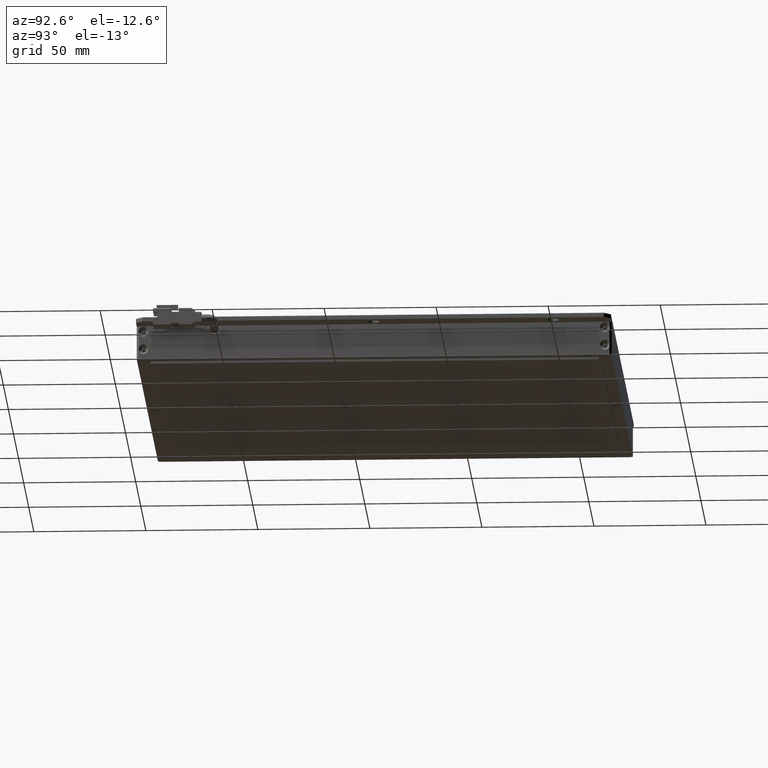
[diagram: clean part render]
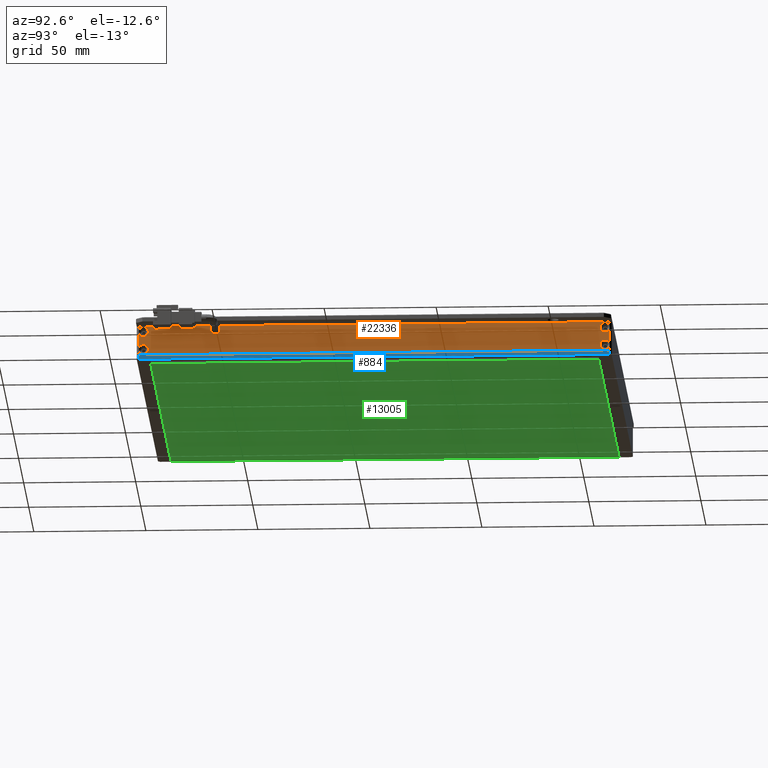
[diagram: same view with three faces highlighted in distinct colors, each labeled with its STEP entity id]
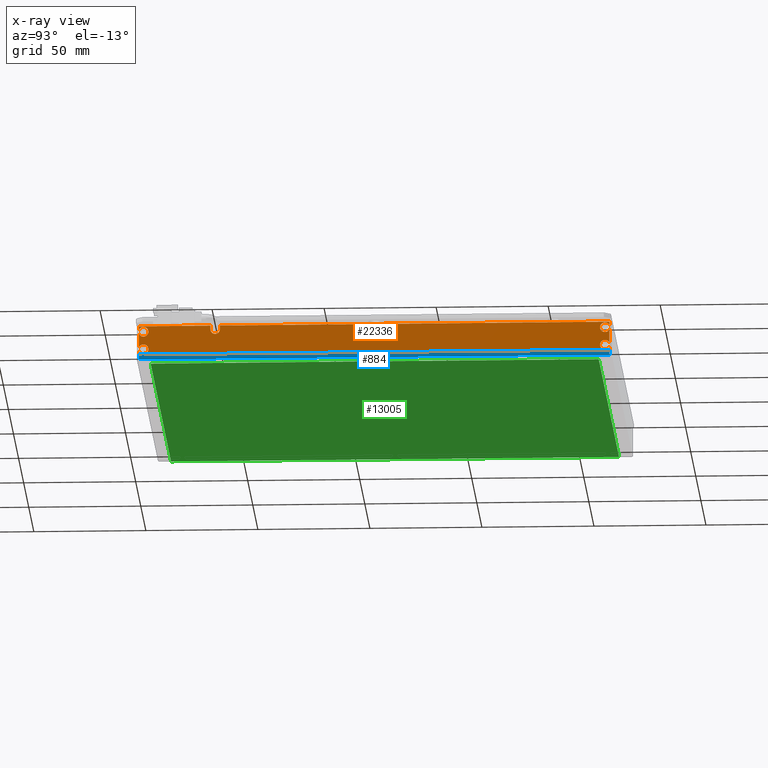
[diagram: x-ray of the same camera — body ghosted, the three highlighted faces saturated]
A machine part, auxiliary view with three faces highlighted in distinct colors.
The next image is the same camera in x-ray (body ghosted, the three faces saturated) — at least one of them is partly hidden behind the body in this view.
Their STEP definitions:

[orange] entity #22336 — the highlighted planar face has unit normal (1, 0, 0).
#96 = EDGE_CURVE ( 'NONE', #4833, #19642, #21328, .T. ) ;
#263 = EDGE_CURVE ( 'NONE', #2877, #8460, #15183, .T. ) ;
#286 = AXIS2_PLACEMENT_3D ( 'NONE', #12539, #9136, #16116 ) ;
#300 = CARTESIAN_POINT ( 'NONE',  ( 123.6657505824738800, -138.3787539827808400, -11.41651513904448500 ) ) ;
#325 = CARTESIAN_POINT ( 'NONE',  ( 123.6657505824761200, 71.62124601721906500, -13.00000000002363800 ) ) ;
#580 = LINE ( 'NONE', #6464, #9919 ) ;
#887 = AXIS2_PLACEMENT_3D ( 'NONE', #18245, #4418, #2501 ) ;
#1008 = ORIENTED_EDGE ( 'NONE', *, *, #15282, .T. ) ;
#1059 = CARTESIAN_POINT ( 'NONE',  ( 123.6657505824781400, 71.62124601721907900, -1.583484861012602900 ) ) ;
#1539 = LINE ( 'NONE', #19079, #15752 ) ;
#1789 = DIRECTION ( 'NONE',  ( -1.000000000000000000, -1.309225264888156400E-016, -0.0000000000000000000 ) ) ;
#1829 = CIRCLE ( 'NONE', #16588, 2.200000000007598500 ) ;
#1958 = VERTEX_POINT ( 'NONE', #2323 ) ;
#2066 = CIRCLE ( 'NONE', #11571, 2.200000000024793200 ) ;
#2275 = CARTESIAN_POINT ( 'NONE',  ( 123.6657505824716000, -136.3787539827808100, -10.50000000002363100 ) ) ;
#2288 = EDGE_CURVE ( 'NONE', #21490, #4630, #20693, .T. ) ;
#2323 = CARTESIAN_POINT ( 'NONE',  ( 123.6657505824738800, -106.4787539827785000, -1.700000000023617500 ) ) ;
#2501 = DIRECTION ( 'NONE',  ( 0.0000000000000000000, -1.000000000000000000, 0.0000000000000000000 ) ) ;
#2692 = DIRECTION ( 'NONE',  ( -3.602839574495699400E-035, 2.751886685293596300E-019, 1.000000000000000000 ) ) ;
#2761 = CIRCLE ( 'NONE', #286, 2.200000000007598500 ) ;
#2877 = VERTEX_POINT ( 'NONE', #4849 ) ;
#2901 = CIRCLE ( 'NONE', #14141, 2.200000000024793200 ) ;
#3143 = DIRECTION ( 'NONE',  ( -1.000000000000000000, -1.309225264888156400E-016, -0.0000000000000000000 ) ) ;
#3281 = DIRECTION ( 'NONE',  ( 3.602839574495699400E-035, -2.751886685293596300E-019, -1.000000000000000000 ) ) ;
#3447 = EDGE_CURVE ( 'NONE', #14478, #4438, #2066, .T. ) ;
#3487 = ORIENTED_EDGE ( 'NONE', *, *, #21854, .T. ) ;
#3748 = CARTESIAN_POINT ( 'NONE',  ( 123.6657505824715700, 67.42124601721168600, -10.50000000002363100 ) ) ;
#3844 = DIRECTION ( 'NONE',  ( -3.602839574495699400E-035, 2.751886685293596300E-019, 1.000000000000000000 ) ) ;
#3977 = VECTOR ( 'NONE', #3281, 1000.000000000000000 ) ;
#4036 = LINE ( 'NONE', #14157, #16321 ) ;
#4039 = LINE ( 'NONE', #16625, #21401 ) ;
#4067 = VERTEX_POINT ( 'NONE', #16275 ) ;
#4418 = DIRECTION ( 'NONE',  ( -1.000000000000000000, -1.309225264888156400E-016, -0.0000000000000000000 ) ) ;
#4421 = EDGE_LOOP ( 'NONE', ( #3487, #11841, #12231, #8798, #7122, #17385, #8335, #20676, #14505, #19179, #19773, #14456, #1008, #18214, #16534, #6692, #7595, #11213, #14261, #18078 ) ) ;
#4424 = CARTESIAN_POINT ( 'NONE',  ( 123.6657505824761400, -106.4787539827807900, -6.500000000023630900 ) ) ;
#4438 = VERTEX_POINT ( 'NONE', #9511 ) ;
#4630 = VERTEX_POINT ( 'NONE', #13863 ) ;
#4670 = DIRECTION ( 'NONE',  ( 0.0000000000000000000, -1.000000000000000000, 4.731064025337974900E-015 ) ) ;
#4833 = VERTEX_POINT ( 'NONE', #3748 ) ;
#4849 = CARTESIAN_POINT ( 'NONE',  ( 123.6657505824761200, 71.62124601721909300, -2.361912748716221700E-011 ) ) ;
#4870 = DIRECTION ( 'NONE',  ( 3.602839574495699400E-035, -2.751886685293596300E-019, -1.000000000000000000 ) ) ;
#5149 = AXIS2_PLACEMENT_3D ( 'NONE', #13127, #18233, #11451 ) ;
#5413 = DIRECTION ( 'NONE',  ( 0.0000000000000000000, -1.000000000000000000, 0.0000000000000000000 ) ) ;
#5511 = VERTEX_POINT ( 'NONE', #12987 ) ;
#6127 = EDGE_CURVE ( 'NONE', #19642, #19674, #580, .T. ) ;
#6289 = DIRECTION ( 'NONE',  ( -3.602839574495699400E-035, 2.751886685293596300E-019, 1.000000000000000000 ) ) ;
#6460 = DIRECTION ( 'NONE',  ( -1.309225264888156400E-016, 1.000000000000000000, -2.751886685293596300E-019 ) ) ;
#6463 = FACE_OUTER_BOUND ( 'NONE', #4421, .T. ) ;
#6464 = CARTESIAN_POINT ( 'NONE',  ( 123.6657505824761200, 71.62124601721910700, -6.500000000023630900 ) ) ;
#6561 = CARTESIAN_POINT ( 'NONE',  ( 123.6657505824761600, 71.62124601721906500, -6.500000000023630900 ) ) ;
#6692 = ORIENTED_EDGE ( 'NONE', *, *, #96, .T. ) ;
#6744 = VECTOR ( 'NONE', #21704, 1000.000000000000000 ) ;
#7001 = DIRECTION ( 'NONE',  ( 0.0000000000000000000, -1.000000000000000000, 0.0000000000000000000 ) ) ;
#7122 = ORIENTED_EDGE ( 'NONE', *, *, #2288, .T. ) ;
#7137 = CARTESIAN_POINT ( 'NONE',  ( 123.6657505824761400, -102.2787539827808300, -2.362866846628008900E-011 ) ) ;
#7193 = AXIS2_PLACEMENT_3D ( 'NONE', #16918, #15059, #4670 ) ;
#7482 = DIRECTION ( 'NONE',  ( -1.000000000000000000, -1.309225264888156400E-016, -0.0000000000000000000 ) ) ;
#7544 = EDGE_CURVE ( 'NONE', #4630, #16257, #17628, .T. ) ;
#7566 = CARTESIAN_POINT ( 'NONE',  ( 123.6657505824716000, -134.1787539827560400, -2.500000000023631300 ) ) ;
#7583 = VECTOR ( 'NONE', #15472, 1000.000000000000000 ) ;
#7595 = ORIENTED_EDGE ( 'NONE', *, *, #6127, .T. ) ;
#7645 = EDGE_CURVE ( 'NONE', #21874, #4833, #1829, .T. ) ;
#7659 = VERTEX_POINT ( 'NONE', #7137 ) ;
#7739 = CARTESIAN_POINT ( 'NONE',  ( 123.6657505824761400, -33.37875398278077200, -2.364254625408790400E-011 ) ) ;
#7837 = CARTESIAN_POINT ( 'NONE',  ( 123.6657505824715700, 67.42124601721168600, -2.500000000023630900 ) ) ;
#7955 = CARTESIAN_POINT ( 'NONE',  ( 123.6657505824761500, -138.3787539827808400, -6.500000000023630900 ) ) ;
#8162 = CARTESIAN_POINT ( 'NONE',  ( 123.6657505824738800, -138.3787539827808400, -9.583484861002777000 ) ) ;
#8198 = VERTEX_POINT ( 'NONE', #300 ) ;
#8335 = ORIENTED_EDGE ( 'NONE', *, *, #19461, .T. ) ;
#8347 = DIRECTION ( 'NONE',  ( 3.602839574495699400E-035, -2.751886685293596300E-019, -1.000000000000000000 ) ) ;
#8460 = VERTEX_POINT ( 'NONE', #1059 ) ;
#8492 = EDGE_CURVE ( 'NONE', #7659, #4067, #4039, .T. ) ;
#8515 = VECTOR ( 'NONE', #12391, 1000.000000000000000 ) ;
#8720 = DIRECTION ( 'NONE',  ( 1.309225264888156400E-016, -1.000000000000000000, 2.751886685293596300E-019 ) ) ;
#8798 = ORIENTED_EDGE ( 'NONE', *, *, #9067, .T. ) ;
#9067 = EDGE_CURVE ( 'NONE', #1958, #21490, #15481, .T. ) ;
#9136 = DIRECTION ( 'NONE',  ( -1.000000000000000000, -1.309225264888156400E-016, -0.0000000000000000000 ) ) ;
#9511 = CARTESIAN_POINT ( 'NONE',  ( 123.6657505824716000, -134.1787539827560400, -10.50000000002363100 ) ) ;
#9610 = CIRCLE ( 'NONE', #19066, 2.200000000007598500 ) ;
#9919 = VECTOR ( 'NONE', #2692, 1000.000000000000000 ) ;
#10319 = DIRECTION ( 'NONE',  ( 0.0000000000000000000, -1.000000000000000000, 3.548298019003481000E-015 ) ) ;
#10532 = DIRECTION ( 'NONE',  ( 0.0000000000000000000, -1.000000000000000000, 0.0000000000000000000 ) ) ;
#11213 = ORIENTED_EDGE ( 'NONE', *, *, #17533, .T. ) ;
#11451 = DIRECTION ( 'NONE',  ( 1.309225264888156400E-016, -1.000000000000000000, 2.751886685293596300E-019 ) ) ;
#11509 = VECTOR ( 'NONE', #6289, 1000.000000000000000 ) ;
#11571 = AXIS2_PLACEMENT_3D ( 'NONE', #2275, #7482, #12676 ) ;
#11841 = ORIENTED_EDGE ( 'NONE', *, *, #8492, .T. ) ;
#12231 = ORIENTED_EDGE ( 'NONE', *, *, #12602, .T. ) ;
#12391 = DIRECTION ( 'NONE',  ( 1.309225264888156400E-016, -1.000000000000000000, 2.751886685293596300E-019 ) ) ;
#12539 = CARTESIAN_POINT ( 'NONE',  ( 123.6657505824715700, 69.62124601721927800, -2.500000000023630900 ) ) ;
#12602 = EDGE_CURVE ( 'NONE', #4067, #1958, #20273, .T. ) ;
#12676 = DIRECTION ( 'NONE',  ( 0.0000000000000000000, -1.000000000000000000, 3.942553354448312000E-015 ) ) ;
#12699 = CARTESIAN_POINT ( 'NONE',  ( 123.6657505824761500, -138.3787539827808400, -13.00000000002364900 ) ) ;
#12816 = DIRECTION ( 'NONE',  ( -1.000000000000000000, -1.309225264888156400E-016, -0.0000000000000000000 ) ) ;
#12902 = DIRECTION ( 'NONE',  ( 0.0000000000000000000, -1.000000000000000000, 3.548298019003481000E-015 ) ) ;
#12987 = CARTESIAN_POINT ( 'NONE',  ( 123.6657505824738800, -138.3787539827808400, -3.416515139044482600 ) ) ;
#13117 = VERTEX_POINT ( 'NONE', #325 ) ;
#13127 = CARTESIAN_POINT ( 'NONE',  ( 123.6657505824761400, -33.37875398278077200, -6.500000000023630900 ) ) ;
#13863 = CARTESIAN_POINT ( 'NONE',  ( 123.6657505824761500, -138.3787539827808400, -2.364254625408790400E-011 ) ) ;
#13891 = EDGE_CURVE ( 'NONE', #17487, #8198, #16902, .T. ) ;
#13982 = DIRECTION ( 'NONE',  ( -1.000000000000000000, -1.309225264888156400E-016, -0.0000000000000000000 ) ) ;
#14114 = VECTOR ( 'NONE', #4870, 1000.000000000000000 ) ;
#14141 = AXIS2_PLACEMENT_3D ( 'NONE', #18873, #3143, #10319 ) ;
#14157 = CARTESIAN_POINT ( 'NONE',  ( 123.6657505824761200, 71.62124601721905000, -6.500000000023630900 ) ) ;
#14261 = ORIENTED_EDGE ( 'NONE', *, *, #16130, .T. ) ;
#14280 = CARTESIAN_POINT ( 'NONE',  ( 123.6657505824716000, -104.3787539827808100, -1.700000000023616600 ) ) ;
#14285 = CARTESIAN_POINT ( 'NONE',  ( 123.6657505824738500, 71.62124601721910700, -3.416515139024304500 ) ) ;
#14456 = ORIENTED_EDGE ( 'NONE', *, *, #13891, .F. ) ;
#14478 = VERTEX_POINT ( 'NONE', #8162 ) ;
#14505 = ORIENTED_EDGE ( 'NONE', *, *, #21939, .T. ) ;
#14605 = LINE ( 'NONE', #16938, #17805 ) ;
#14640 = AXIS2_PLACEMENT_3D ( 'NONE', #16455, #12816, #12902 ) ;
#14649 = CARTESIAN_POINT ( 'NONE',  ( 123.6657505824738800, -138.3787539827808400, -1.583484861002775600 ) ) ;
#14949 = PLANE ( 'NONE',  #5149 ) ;
#15059 = DIRECTION ( 'NONE',  ( -1.000000000000000000, -1.309225264888156400E-016, -0.0000000000000000000 ) ) ;
#15183 = LINE ( 'NONE', #6561, #14114 ) ;
#15282 = EDGE_CURVE ( 'NONE', #17487, #13117, #14605, .T. ) ;
#15472 = DIRECTION ( 'NONE',  ( 3.602839574495699400E-035, -2.751886685293596300E-019, -1.000000000000000000 ) ) ;
#15481 = LINE ( 'NONE', #4424, #6744 ) ;
#15752 = VECTOR ( 'NONE', #8720, 1000.000000000000000 ) ;
#15795 = DIRECTION ( 'NONE',  ( -1.000000000000000000, -1.309225264888156400E-016, -0.0000000000000000000 ) ) ;
#16116 = DIRECTION ( 'NONE',  ( 0.0000000000000000000, -1.000000000000000000, 0.0000000000000000000 ) ) ;
#16130 = EDGE_CURVE ( 'NONE', #20698, #8460, #9610, .T. ) ;
#16257 = VERTEX_POINT ( 'NONE', #14649 ) ;
#16262 = AXIS2_PLACEMENT_3D ( 'NONE', #14280, #15795, #10532 ) ;
#16275 = CARTESIAN_POINT ( 'NONE',  ( 123.6657505824738600, -102.2787539827831000, -1.700000000023617500 ) ) ;
#16299 = EDGE_CURVE ( 'NONE', #17111, #5511, #19878, .T. ) ;
#16321 = VECTOR ( 'NONE', #3844, 1000.000000000000000 ) ;
#16400 = CIRCLE ( 'NONE', #7193, 2.200000000024793200 ) ;
#16455 = CARTESIAN_POINT ( 'NONE',  ( 123.6657505824716000, -136.3787539827808100, -2.500000000023630900 ) ) ;
#16534 = ORIENTED_EDGE ( 'NONE', *, *, #7645, .T. ) ;
#16588 = AXIS2_PLACEMENT_3D ( 'NONE', #17623, #1789, #5413 ) ;
#16625 = CARTESIAN_POINT ( 'NONE',  ( 123.6657505824761400, -102.2787539827808300, -6.500000000023630900 ) ) ;
#16902 = LINE ( 'NONE', #7955, #11509 ) ;
#16918 = CARTESIAN_POINT ( 'NONE',  ( 123.6657505824716000, -136.3787539827808100, -10.50000000002363100 ) ) ;
#16938 = CARTESIAN_POINT ( 'NONE',  ( 123.6657505824761400, -33.37875398278077200, -13.00000000002364500 ) ) ;
#17111 = VERTEX_POINT ( 'NONE', #7566 ) ;
#17124 = CARTESIAN_POINT ( 'NONE',  ( 123.6657505824761500, -138.3787539827808400, -6.500000000023630900 ) ) ;
#17385 = ORIENTED_EDGE ( 'NONE', *, *, #7544, .T. ) ;
#17487 = VERTEX_POINT ( 'NONE', #12699 ) ;
#17500 = CARTESIAN_POINT ( 'NONE',  ( 123.6657505824715700, 69.62124601721927800, -2.500000000023630900 ) ) ;
#17533 = EDGE_CURVE ( 'NONE', #19674, #20698, #2761, .T. ) ;
#17623 = CARTESIAN_POINT ( 'NONE',  ( 123.6657505824715700, 69.62124601721927800, -10.50000000002363100 ) ) ;
#17628 = LINE ( 'NONE', #20711, #7583 ) ;
#17758 = EDGE_CURVE ( 'NONE', #4438, #8198, #16400, .T. ) ;
#17805 = VECTOR ( 'NONE', #6460, 1000.000000000000000 ) ;
#18078 = ORIENTED_EDGE ( 'NONE', *, *, #263, .F. ) ;
#18214 = ORIENTED_EDGE ( 'NONE', *, *, #18948, .T. ) ;
#18233 = DIRECTION ( 'NONE',  ( 1.000000000000000000, 1.309225264888156400E-016, 0.0000000000000000000 ) ) ;
#18245 = CARTESIAN_POINT ( 'NONE',  ( 123.6657505824715700, 69.62124601721927800, -10.50000000002363100 ) ) ;
#18873 = CARTESIAN_POINT ( 'NONE',  ( 123.6657505824716000, -136.3787539827808100, -2.500000000023630900 ) ) ;
#18928 = CARTESIAN_POINT ( 'NONE',  ( 123.6657505824738500, 71.62124601721907900, -11.41651513902436800 ) ) ;
#18948 = EDGE_CURVE ( 'NONE', #13117, #21874, #4036, .T. ) ;
#19066 = AXIS2_PLACEMENT_3D ( 'NONE', #17500, #13982, #7001 ) ;
#19079 = CARTESIAN_POINT ( 'NONE',  ( 123.6657505824761400, -33.37875398278077200, -2.362086221063819400E-011 ) ) ;
#19179 = ORIENTED_EDGE ( 'NONE', *, *, #3447, .T. ) ;
#19461 = EDGE_CURVE ( 'NONE', #16257, #17111, #2901, .T. ) ;
#19598 = CARTESIAN_POINT ( 'NONE',  ( 123.6657505824781400, 71.62124601721910700, -9.583484861012650000 ) ) ;
#19642 = VERTEX_POINT ( 'NONE', #19598 ) ;
#19674 = VERTEX_POINT ( 'NONE', #14285 ) ;
#19773 = ORIENTED_EDGE ( 'NONE', *, *, #17758, .T. ) ;
#19878 = CIRCLE ( 'NONE', #14640, 2.200000000024793200 ) ;
#20020 = LINE ( 'NONE', #17124, #3977 ) ;
#20273 = CIRCLE ( 'NONE', #16262, 2.100000000010787500 ) ;
#20676 = ORIENTED_EDGE ( 'NONE', *, *, #16299, .T. ) ;
#20693 = LINE ( 'NONE', #7739, #8515 ) ;
#20698 = VERTEX_POINT ( 'NONE', #7837 ) ;
#20711 = CARTESIAN_POINT ( 'NONE',  ( 123.6657505824761500, -138.3787539827808400, -6.500000000023630900 ) ) ;
#21328 = CIRCLE ( 'NONE', #887, 2.200000000007598500 ) ;
#21401 = VECTOR ( 'NONE', #8347, 1000.000000000000000 ) ;
#21490 = VERTEX_POINT ( 'NONE', #22248 ) ;
#21704 = DIRECTION ( 'NONE',  ( -3.602839574495699400E-035, 2.751886685293596300E-019, 1.000000000000000000 ) ) ;
#21854 = EDGE_CURVE ( 'NONE', #2877, #7659, #1539, .T. ) ;
#21874 = VERTEX_POINT ( 'NONE', #18928 ) ;
#21939 = EDGE_CURVE ( 'NONE', #5511, #14478, #20020, .T. ) ;
#22248 = CARTESIAN_POINT ( 'NONE',  ( 123.6657505824761400, -106.4787539827807900, -2.364254625408790400E-011 ) ) ;
#22336 = ADVANCED_FACE ( 'NONE', ( #6463 ), #14949, .T. ) ;

[blue] entity #884 — the highlighted planar face has unit normal (-1, 0, 0).
#393 = EDGE_CURVE ( 'NONE', #8377, #11531, #22423, .T. ) ;
#789 = VECTOR ( 'NONE', #10530, 1000.000000000000000 ) ;
#884 = ADVANCED_FACE ( 'NONE', ( #2552 ), #1913, .F. ) ;
#1913 = PLANE ( 'NONE',  #9278 ) ;
#2552 = FACE_OUTER_BOUND ( 'NONE', #15784, .T. ) ;
#2819 = DIRECTION ( 'NONE',  ( 0.0000000000000000000, -1.000000000000000000, 0.0000000000000000000 ) ) ;
#2936 = CARTESIAN_POINT ( 'NONE',  ( 123.6657505824761500, -138.3787539827808400, -13.00000000002364500 ) ) ;
#3592 = VECTOR ( 'NONE', #2819, 1000.000000000000000 ) ;
#6660 = EDGE_CURVE ( 'NONE', #7040, #11531, #18544, .T. ) ;
#7040 = VERTEX_POINT ( 'NONE', #20957 ) ;
#7984 = LINE ( 'NONE', #11354, #19925 ) ;
#8377 = VERTEX_POINT ( 'NONE', #15143 ) ;
#8456 = VERTEX_POINT ( 'NONE', #14909 ) ;
#8469 = CARTESIAN_POINT ( 'NONE',  ( 123.6657505824761400, -138.3787539827808400, -15.00000000002364500 ) ) ;
#9278 = AXIS2_PLACEMENT_3D ( 'NONE', #21506, #14843, #18129 ) ;
#10530 = DIRECTION ( 'NONE',  ( 0.0000000000000000000, 0.0000000000000000000, -1.000000000000000000 ) ) ;
#11354 = CARTESIAN_POINT ( 'NONE',  ( 123.6657505824761400, 72.62124601721919200, -15.00000000002364500 ) ) ;
#11531 = VERTEX_POINT ( 'NONE', #2936 ) ;
#12041 = ORIENTED_EDGE ( 'NONE', *, *, #6660, .T. ) ;
#12062 = DIRECTION ( 'NONE',  ( -0.0000000000000000000, -0.0000000000000000000, 1.000000000000000000 ) ) ;
#13231 = EDGE_CURVE ( 'NONE', #8456, #8377, #7984, .T. ) ;
#14843 = DIRECTION ( 'NONE',  ( -1.000000000000000000, 0.0000000000000000000, 0.0000000000000000000 ) ) ;
#14909 = CARTESIAN_POINT ( 'NONE',  ( 123.6657505824761400, 71.62124601721922100, -15.00000000002364500 ) ) ;
#15143 = CARTESIAN_POINT ( 'NONE',  ( 123.6657505824761400, -138.3787539827808400, -15.00000000002364500 ) ) ;
#15431 = ORIENTED_EDGE ( 'NONE', *, *, #13231, .F. ) ;
#15784 = EDGE_LOOP ( 'NONE', ( #20432, #12041, #22158, #15431 ) ) ;
#17207 = CARTESIAN_POINT ( 'NONE',  ( 123.6657505824761400, 71.62124601721922100, -15.00000000002364500 ) ) ;
#17896 = EDGE_CURVE ( 'NONE', #7040, #8456, #19051, .T. ) ;
#18129 = DIRECTION ( 'NONE',  ( 0.0000000000000000000, 1.000000000000000000, -0.0000000000000000000 ) ) ;
#18144 = DIRECTION ( 'NONE',  ( -0.0000000000000000000, -1.000000000000000000, 0.0000000000000000000 ) ) ;
#18544 = LINE ( 'NONE', #22086, #3592 ) ;
#19051 = LINE ( 'NONE', #17207, #789 ) ;
#19925 = VECTOR ( 'NONE', #18144, 1000.000000000000000 ) ;
#20432 = ORIENTED_EDGE ( 'NONE', *, *, #17896, .F. ) ;
#20957 = CARTESIAN_POINT ( 'NONE',  ( 123.6657505824761400, 71.62124601721922100, -13.00000000002364500 ) ) ;
#21334 = VECTOR ( 'NONE', #12062, 1000.000000000000000 ) ;
#21506 = CARTESIAN_POINT ( 'NONE',  ( 123.6657505824761400, 72.62124601721919200, -15.00000000002364500 ) ) ;
#22086 = CARTESIAN_POINT ( 'NONE',  ( 123.6657505824761400, 72.62124601721919200, -13.00000000002364500 ) ) ;
#22158 = ORIENTED_EDGE ( 'NONE', *, *, #393, .F. ) ;
#22423 = LINE ( 'NONE', #8469, #21334 ) ;

[green] entity #13005 — the highlighted planar face has unit normal (0, 0, -1).
#98 = DIRECTION ( 'NONE',  ( -1.000000000000000000, 0.0000000000000000000, -0.0000000000000000000 ) ) ;
#1197 = CARTESIAN_POINT ( 'NONE',  ( -81.33424941752386400, 66.62124601721917800, -16.00000000002364300 ) ) ;
#1912 = ORIENTED_EDGE ( 'NONE', *, *, #19460, .T. ) ;
#2225 = VECTOR ( 'NONE', #16725, 1000.000000000000000 ) ;
#2367 = EDGE_CURVE ( 'NONE', #4475, #18054, #7396, .T. ) ;
#2615 = LINE ( 'NONE', #10513, #20559 ) ;
#2684 = DIRECTION ( 'NONE',  ( -0.002999986500133812500, 0.9999955000303746300, 0.0000000000000000000 ) ) ;
#2898 = DIRECTION ( 'NONE',  ( 0.002999986500133816800, 0.9999955000303746300, -0.0000000000000000000 ) ) ;
#2970 = LINE ( 'NONE', #14849, #15547 ) ;
#3336 = CARTESIAN_POINT ( 'NONE',  ( 0.0000000000000000000, 0.0000000000000000000, -16.00000000002364300 ) ) ;
#3574 = DIRECTION ( 'NONE',  ( 1.000000000000000000, 6.938893903907228400E-017, -0.0000000000000000000 ) ) ;
#4156 = VERTEX_POINT ( 'NONE', #6296 ) ;
#4475 = VERTEX_POINT ( 'NONE', #19874 ) ;
#4878 = VERTEX_POINT ( 'NONE', #20145 ) ;
#4896 = CARTESIAN_POINT ( 'NONE',  ( 118.6657505824761500, -133.3787539827806900, -16.00000000002364300 ) ) ;
#6296 = CARTESIAN_POINT ( 'NONE',  ( 118.9657505824804200, -33.37875398278068700, -16.00000000002364300 ) ) ;
#6590 = EDGE_CURVE ( 'NONE', #18054, #11075, #9601, .T. ) ;
#7270 = VECTOR ( 'NONE', #11787, 1000.000000000000200 ) ;
#7396 = LINE ( 'NONE', #21729, #13708 ) ;
#8701 = AXIS2_PLACEMENT_3D ( 'NONE', #3336, #10581, #98 ) ;
#8771 = PLANE ( 'NONE',  #8701 ) ;
#9342 = VECTOR ( 'NONE', #2898, 1000.000000000000100 ) ;
#9510 = DIRECTION ( 'NONE',  ( 0.002999986500133818500, -0.9999955000303746300, 0.0000000000000000000 ) ) ;
#9601 = LINE ( 'NONE', #1197, #9342 ) ;
#9670 = ORIENTED_EDGE ( 'NONE', *, *, #6590, .T. ) ;
#10513 = CARTESIAN_POINT ( 'NONE',  ( 118.6657505824761500, 66.62124601721919200, -16.00000000002364300 ) ) ;
#10581 = DIRECTION ( 'NONE',  ( 0.0000000000000000000, 0.0000000000000000000, -1.000000000000000000 ) ) ;
#10984 = VERTEX_POINT ( 'NONE', #15115 ) ;
#11075 = VERTEX_POINT ( 'NONE', #20427 ) ;
#11123 = EDGE_CURVE ( 'NONE', #11075, #4878, #2615, .T. ) ;
#11596 = FACE_OUTER_BOUND ( 'NONE', #14637, .T. ) ;
#11787 = DIRECTION ( 'NONE',  ( -0.002999986500133813800, -0.9999955000303746300, -0.0000000000000000000 ) ) ;
#11936 = ORIENTED_EDGE ( 'NONE', *, *, #21299, .T. ) ;
#13005 = ADVANCED_FACE ( 'NONE', ( #11596 ), #8771, .T. ) ;
#13281 = EDGE_CURVE ( 'NONE', #10984, #4475, #18560, .T. ) ;
#13708 = VECTOR ( 'NONE', #2684, 1000.000000000000200 ) ;
#14528 = ORIENTED_EDGE ( 'NONE', *, *, #13281, .T. ) ;
#14637 = EDGE_LOOP ( 'NONE', ( #9670, #15922, #11936, #1912, #14528, #16131 ) ) ;
#14849 = CARTESIAN_POINT ( 'NONE',  ( 118.6657505824761500, 66.62124601721919200, -16.00000000002364300 ) ) ;
#15115 = CARTESIAN_POINT ( 'NONE',  ( 118.6657505824761500, -133.3787539827806900, -16.00000000002364300 ) ) ;
#15158 = CARTESIAN_POINT ( 'NONE',  ( 118.6657505824761500, -133.3787539827806900, -16.00000000002364300 ) ) ;
#15547 = VECTOR ( 'NONE', #9510, 1000.000000000000200 ) ;
#15922 = ORIENTED_EDGE ( 'NONE', *, *, #11123, .T. ) ;
#16131 = ORIENTED_EDGE ( 'NONE', *, *, #2367, .T. ) ;
#16725 = DIRECTION ( 'NONE',  ( -1.000000000000000000, -5.551115123125782700E-016, 0.0000000000000000000 ) ) ;
#18054 = VERTEX_POINT ( 'NONE', #21237 ) ;
#18418 = LINE ( 'NONE', #4896, #7270 ) ;
#18560 = LINE ( 'NONE', #15158, #2225 ) ;
#19460 = EDGE_CURVE ( 'NONE', #4156, #10984, #18418, .T. ) ;
#19874 = CARTESIAN_POINT ( 'NONE',  ( -81.33424941752386400, -133.3787539827808100, -16.00000000002364300 ) ) ;
#20145 = CARTESIAN_POINT ( 'NONE',  ( 118.6657505824761500, 66.62124601721919200, -16.00000000002364300 ) ) ;
#20427 = CARTESIAN_POINT ( 'NONE',  ( -81.33424941752386400, 66.62124601721917800, -16.00000000002364300 ) ) ;
#20559 = VECTOR ( 'NONE', #3574, 1000.000000000000000 ) ;
#21237 = CARTESIAN_POINT ( 'NONE',  ( -81.63424941752812500, -33.37875398278074400, -16.00000000002364300 ) ) ;
#21299 = EDGE_CURVE ( 'NONE', #4878, #4156, #2970, .T. ) ;
#21729 = CARTESIAN_POINT ( 'NONE',  ( -81.33424941752386400, -133.3787539827808100, -16.00000000002364300 ) ) ;